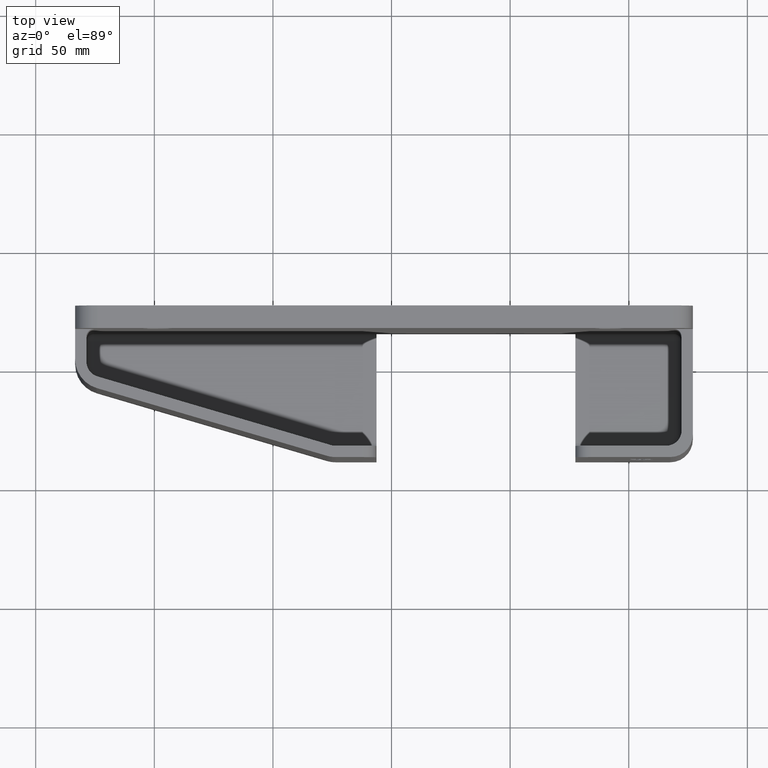
[diagram: clean part render]
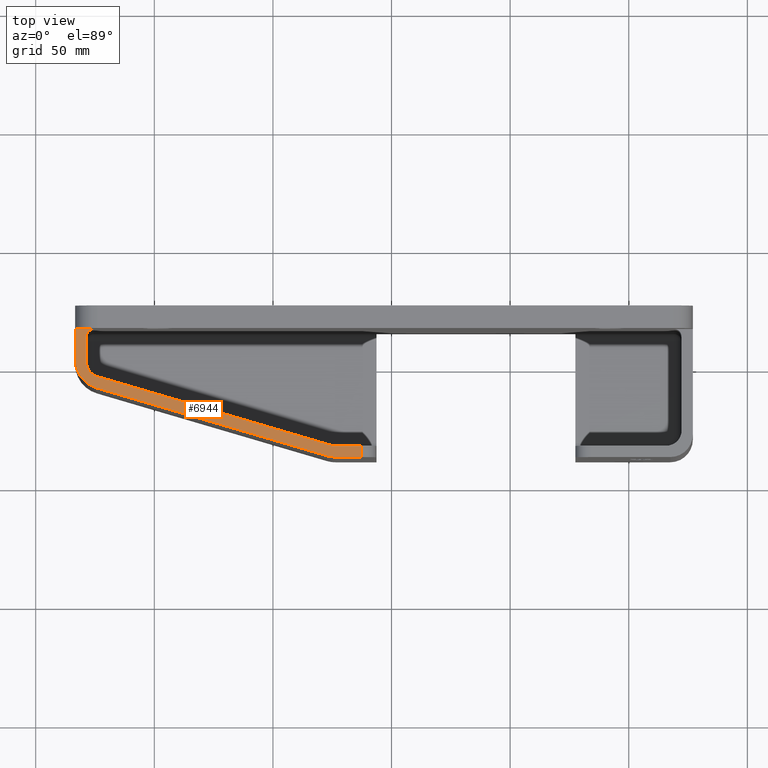
[diagram: same view with one face highlighted and labeled with its STEP entity id]
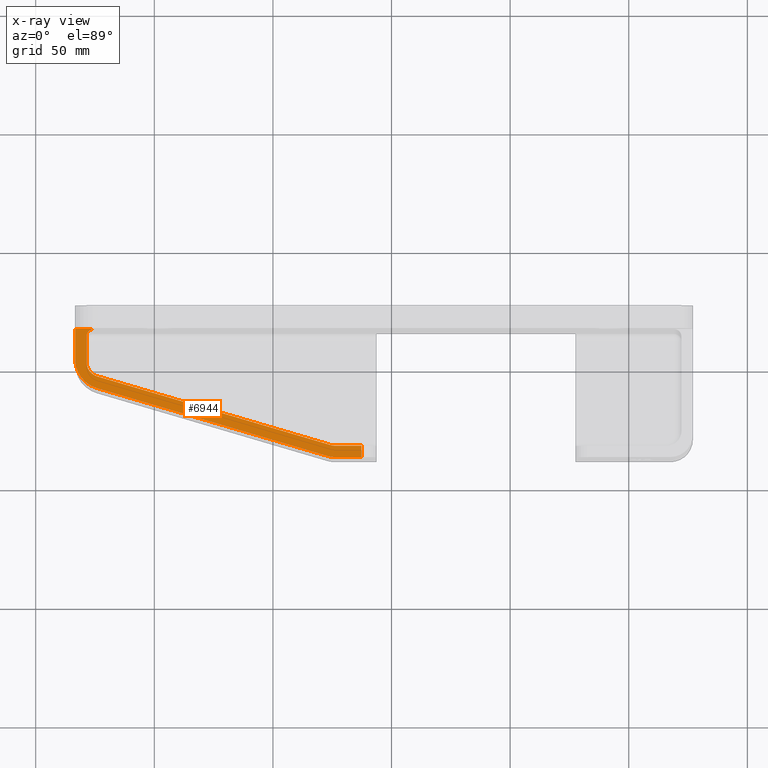
[diagram: x-ray of the same camera — body ghosted, the highlighted face saturated]
A machine part, top view. The second image highlights one B-rep face of the part: STEP entity #6944.
The next image is the same camera in x-ray: the body ghosted, the highlighted face saturated — about 0% of this face is hidden behind the body in this view.
In plain terms, the highlighted planar face has unit normal (0, 0, -1).
Its self-contained STEP definition (entity closure, byte-faithful):
#11 = DIRECTION ( 'NONE',  ( -0.9593655015712706500, 0.2821663239915498900, -1.022767110500755400E-016 ) ) ;
#12 = CARTESIAN_POINT ( 'NONE',  ( -5.062897093224907300, -0.1095885922867626300, 4.999999999999999100 ) ) ;
#18 = CARTESIAN_POINT ( 'NONE',  ( -0.9279954853330652000, -1.000000000000000200, 4.999999999999999100 ) ) ;
#26 = DIRECTION ( 'NONE',  ( -1.000000000000000000, 0.0000000000000000000, 0.0000000000000000000 ) ) ;
#27 = DIRECTION ( 'NONE',  ( 1.066087021917761400E-016, 1.941591794598364300E-032, -1.000000000000000000 ) ) ;
#36 = CARTESIAN_POINT ( 'NONE',  ( -0.9369960496664220300, -1.062500000000002000, 4.999999999999999100 ) ) ;
#40 = DIRECTION ( 'NONE',  ( -1.000000000000000000, 0.0000000000000000000, 0.0000000000000000000 ) ) ;
#41 = DIRECTION ( 'NONE',  ( 1.066087021917761400E-016, 1.941591794598364300E-032, -1.000000000000000000 ) ) ;
#42 = CARTESIAN_POINT ( 'NONE',  ( -4.812897093224907300, 0.07747089516425734200, 4.999999999999999100 ) ) ;
#46 = DIRECTION ( 'NONE',  ( -1.000000000000000000, 0.0000000000000000000, 0.0000000000000000000 ) ) ;
#47 = DIRECTION ( 'NONE',  ( 1.066087021917761400E-016, 1.941591794598364300E-032, -1.000000000000000000 ) ) ;
#54 = DIRECTION ( 'NONE',  ( -0.9593655015712706500, 0.2821663239915501700, -1.022767110500755300E-016 ) ) ;
#55 = CARTESIAN_POINT ( 'NONE',  ( -0.9999999999999998900, -1.500000000000000200, 4.999999999999999100 ) ) ;
#56 = CARTESIAN_POINT ( 'NONE',  ( -4.937897093224906400, 0.4999999999999993900, 4.999999999999999100 ) ) ;
#64 = DIRECTION ( 'NONE',  ( -1.000000000000000000, 0.0000000000000000000, 0.0000000000000000000 ) ) ;
#65 = DIRECTION ( 'NONE',  ( -1.066087021917761400E-016, -1.941591794598364300E-032, 1.000000000000000000 ) ) ;
#66 = DIRECTION ( 'NONE',  ( 0.0000000000000000000, 1.000000000000000000, 1.941591794598364300E-032 ) ) ;
#67 = CARTESIAN_POINT ( 'NONE',  ( -5.062897093224907300, 0.6249999999999993300, 4.999999999999999100 ) ) ;
#75 = DIRECTION ( 'NONE',  ( -1.000000000000000000, -1.416663888520787000E-016, -1.066087021917761500E-016 ) ) ;
#76 = CARTESIAN_POINT ( 'NONE',  ( 4.812102906775091800, -1.312500000000000900, 5.000000000000000000 ) ) ;
#84 = DIRECTION ( 'NONE',  ( 1.821231995776175700E-016, -1.000000000000000000, -0.0000000000000000000 ) ) ;
#92 = CARTESIAN_POINT ( 'NONE',  ( -5.250000000000000900, 10.92366496202298800, 4.999999999999999100 ) ) ;
#94 = DIRECTION ( 'NONE',  ( -1.000000000000000000, -1.244892756606500100E-016, -1.066087021917761500E-016 ) ) ;
#95 = CARTESIAN_POINT ( 'NONE',  ( 4.999999999999999100, 0.6250000000000011100, 5.000000000000000000 ) ) ;
#102 = CARTESIAN_POINT ( 'NONE',  ( -4.749999999999998200, 0.1241189749020391300, 4.999999999999999100 ) ) ;
#485 = LINE ( 'NONE', #95, #486 ) ;
#486 = VECTOR ( 'NONE', #94, 39.37007874015748100 ) ;
#487 = VECTOR ( 'NONE', #84, 39.37007874015748100 ) ;
#489 = LINE ( 'NONE', #92, #487 ) ;
#494 = LINE ( 'NONE', #76, #495 ) ;
#495 = VECTOR ( 'NONE', #75, 39.37007874015748100 ) ;
#500 = LINE ( 'NONE', #67, #501 ) ;
#501 = VECTOR ( 'NONE', #66, 39.37007874015748100 ) ;
#503 = CIRCLE ( 'NONE', #1430, 0.4999999999999996100 ) ;
#506 = LINE ( 'NONE', #55, #507 ) ;
#507 = VECTOR ( 'NONE', #54, 39.37007874015748100 ) ;
#513 = CIRCLE ( 'NONE', #1432, 0.1250000000000004400 ) ;
#517 = CIRCLE ( 'NONE', #1431, 0.2499999999999998100 ) ;
#519 = LINE ( 'NONE', #12, #527 ) ;
#527 = VECTOR ( 'NONE', #11, 39.37007874015748900 ) ;
#528 = CIRCLE ( 'NONE', #1433, 0.2500000000000000600 ) ;
#1142 = ORIENTED_EDGE ( 'NONE', *, *, #5255, .T. ) ;
#1143 = ORIENTED_EDGE ( 'NONE', *, *, #5260, .T. ) ;
#1150 = ORIENTED_EDGE ( 'NONE', *, *, #5234, .T. ) ;
#1221 = VERTEX_POINT ( 'NONE', #4603 ) ;
#1223 = VERTEX_POINT ( 'NONE', #1383 ) ;
#1224 = VERTEX_POINT ( 'NONE', #4597 ) ;
#1250 = VERTEX_POINT ( 'NONE', #4566 ) ;
#1253 = VERTEX_POINT ( 'NONE', #4562 ) ;
#1287 = VERTEX_POINT ( 'NONE', #4524 ) ;
#1307 = VERTEX_POINT ( 'NONE', #4502 ) ;
#1309 = VERTEX_POINT ( 'NONE', #4500 ) ;
#1328 = VERTEX_POINT ( 'NONE', #4476 ) ;
#1341 = VERTEX_POINT ( 'NONE', #4462 ) ;
#1373 = VERTEX_POINT ( 'NONE', #4428 ) ;
#1383 = CARTESIAN_POINT ( 'NONE',  ( -0.4999999999999985000, -1.312500000000001600, 4.999999999999999100 ) ) ;
#1385 = VERTEX_POINT ( 'NONE', #4417 ) ;
#1430 = AXIS2_PLACEMENT_3D ( 'NONE', #102, #65, #64 ) ;
#1431 = AXIS2_PLACEMENT_3D ( 'NONE', #42, #41, #40 ) ;
#1432 = AXIS2_PLACEMENT_3D ( 'NONE', #56, #47, #46 ) ;
#1433 = AXIS2_PLACEMENT_3D ( 'NONE', #36, #27, #26 ) ;
#1437 = AXIS2_PLACEMENT_3D ( 'NONE', #18, #4906, #4905 ) ;
#1490 = EDGE_LOOP ( 'NONE', ( #5649, #5657, #5658, #1142, #1143, #5654, #5652, #5659, #5660, #1150, #5661, #5662, #5664 ) ) ;
#1514 = AXIS2_PLACEMENT_3D ( 'NONE', #3706, #3697, #3696 ) ;
#3082 = EDGE_CURVE ( 'NONE', #1309, #1223, #4272, .T. ) ;
#3254 = LINE ( 'NONE', #4772, #3255 ) ;
#3255 = VECTOR ( 'NONE', #4771, 39.37007874015748100 ) ;
#3261 = CIRCLE ( 'NONE', #1437, 0.5000000000000001100 ) ;
#3696 = DIRECTION ( 'NONE',  ( -1.000000000000000000, 0.0000000000000000000, -1.066087021917761500E-016 ) ) ;
#3697 = DIRECTION ( 'NONE',  ( 1.066087021917761500E-016, 1.941591794598364300E-032, -1.000000000000000000 ) ) ;
#3705 = PLANE ( 'NONE',  #1514 ) ;
#3706 = CARTESIAN_POINT ( 'NONE',  ( 4.999999999999998200, 10.92366496202299000, 5.000000000000000000 ) ) ;
#3870 = FACE_OUTER_BOUND ( 'NONE', #1490, .T. ) ;
#4272 = LINE ( 'NONE', #4327, #4273 ) ;
#4273 = VECTOR ( 'NONE', #4326, 39.37007874015748100 ) ;
#4326 = DIRECTION ( 'NONE',  ( -1.821231995776176200E-016, 1.000000000000000000, -2.736911063134408300E-048 ) ) ;
#4327 = CARTESIAN_POINT ( 'NONE',  ( -0.5000000000000006700, 10.92366496202299000, 4.999999999999999100 ) ) ;
#4417 = CARTESIAN_POINT ( 'NONE',  ( -1.069078647328840300, -1.479682750785635400, 4.999999999999999100 ) ) ;
#4428 = CARTESIAN_POINT ( 'NONE',  ( -5.249999999999999100, 0.1241189749020399500, 4.999999999999999100 ) ) ;
#4462 = CARTESIAN_POINT ( 'NONE',  ( -5.249999999999999100, 0.6249999999999988900, 4.999999999999999100 ) ) ;
#4476 = CARTESIAN_POINT ( 'NONE',  ( -0.9279954853330652000, -1.500000000000000200, 4.999999999999999100 ) ) ;
#4500 = CARTESIAN_POINT ( 'NONE',  ( -0.4999999999999985000, -1.500000000000000200, 4.999999999999999100 ) ) ;
#4502 = CARTESIAN_POINT ( 'NONE',  ( -5.062897093224907300, 0.07747089516425734200, 4.999999999999999100 ) ) ;
#4524 = CARTESIAN_POINT ( 'NONE',  ( -4.891083161995775100, -0.3555637758835956100, 4.999999999999999100 ) ) ;
#4562 = CARTESIAN_POINT ( 'NONE',  ( -1.007537630664308200, -1.302341375392820100, 4.999999999999999100 ) ) ;
#4566 = CARTESIAN_POINT ( 'NONE',  ( -4.883438674222794900, -0.1623704802285604000, 4.999999999999999100 ) ) ;
#4591 = VERTEX_POINT ( 'NONE', #7971 ) ;
#4597 = CARTESIAN_POINT ( 'NONE',  ( -0.9369960496664220300, -1.312500000000001600, 4.999999999999999100 ) ) ;
#4603 = CARTESIAN_POINT ( 'NONE',  ( -5.062897093224907300, 0.4999999999999993900, 4.999999999999999100 ) ) ;
#4771 = DIRECTION ( 'NONE',  ( -1.000000000000000000, -9.106159978880877400E-017, -1.066087021917761500E-016 ) ) ;
#4772 = CARTESIAN_POINT ( 'NONE',  ( 5.000000000000000000, -1.499999999999999600, 5.000000000000000000 ) ) ;
#4905 = DIRECTION ( 'NONE',  ( -1.000000000000000000, -8.195543980992787700E-016, 0.0000000000000000000 ) ) ;
#4906 = DIRECTION ( 'NONE',  ( -1.066087021917761400E-016, -1.941591794598364300E-032, 1.000000000000000000 ) ) ;
#5231 = EDGE_CURVE ( 'NONE', #4591, #1341, #485, .T. ) ;
#5234 = EDGE_CURVE ( 'NONE', #1341, #1373, #489, .T. ) ;
#5237 = EDGE_CURVE ( 'NONE', #1223, #1224, #494, .T. ) ;
#5240 = EDGE_CURVE ( 'NONE', #1307, #1221, #500, .T. ) ;
#5241 = EDGE_CURVE ( 'NONE', #1373, #1287, #503, .T. ) ;
#5244 = EDGE_CURVE ( 'NONE', #1385, #1287, #506, .T. ) ;
#5247 = EDGE_CURVE ( 'NONE', #1221, #4591, #513, .T. ) ;
#5249 = EDGE_CURVE ( 'NONE', #1250, #1307, #517, .T. ) ;
#5255 = EDGE_CURVE ( 'NONE', #1224, #1253, #528, .T. ) ;
#5260 = EDGE_CURVE ( 'NONE', #1253, #1250, #519, .T. ) ;
#5264 = EDGE_CURVE ( 'NONE', #1309, #1328, #3254, .T. ) ;
#5267 = EDGE_CURVE ( 'NONE', #1385, #1328, #3261, .T. ) ;
#5649 = ORIENTED_EDGE ( 'NONE', *, *, #5264, .F. ) ;
#5652 = ORIENTED_EDGE ( 'NONE', *, *, #5240, .T. ) ;
#5654 = ORIENTED_EDGE ( 'NONE', *, *, #5249, .T. ) ;
#5657 = ORIENTED_EDGE ( 'NONE', *, *, #3082, .T. ) ;
#5658 = ORIENTED_EDGE ( 'NONE', *, *, #5237, .T. ) ;
#5659 = ORIENTED_EDGE ( 'NONE', *, *, #5247, .T. ) ;
#5660 = ORIENTED_EDGE ( 'NONE', *, *, #5231, .T. ) ;
#5661 = ORIENTED_EDGE ( 'NONE', *, *, #5241, .T. ) ;
#5662 = ORIENTED_EDGE ( 'NONE', *, *, #5244, .F. ) ;
#5664 = ORIENTED_EDGE ( 'NONE', *, *, #5267, .T. ) ;
#6944 = ADVANCED_FACE ( 'NONE', ( #3870 ), #3705, .F. ) ;
#7971 = CARTESIAN_POINT ( 'NONE',  ( -4.937897093224906400, 0.6249999999999993300, 4.999999999999999100 ) ) ;